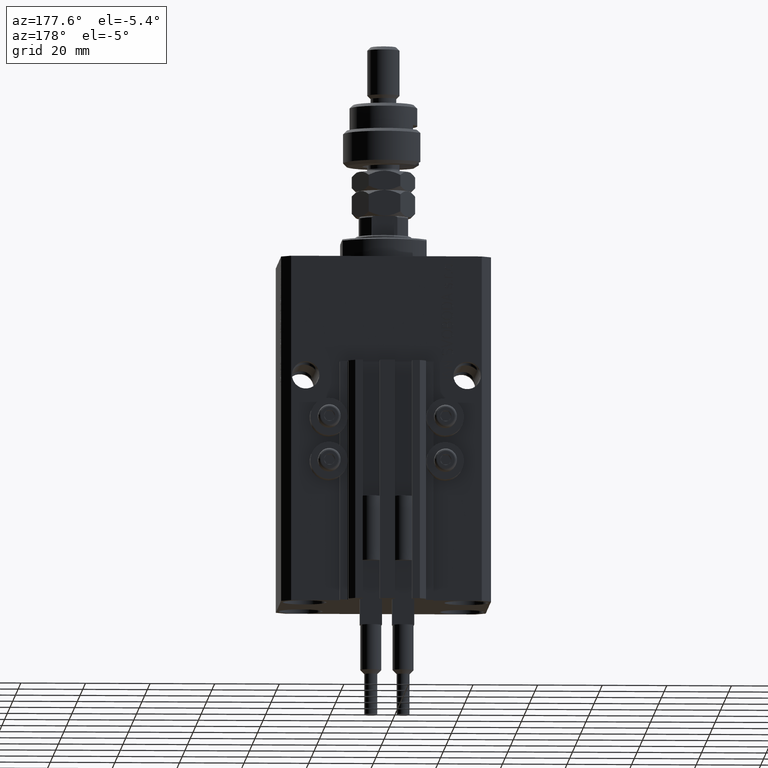
[diagram: clean part render]
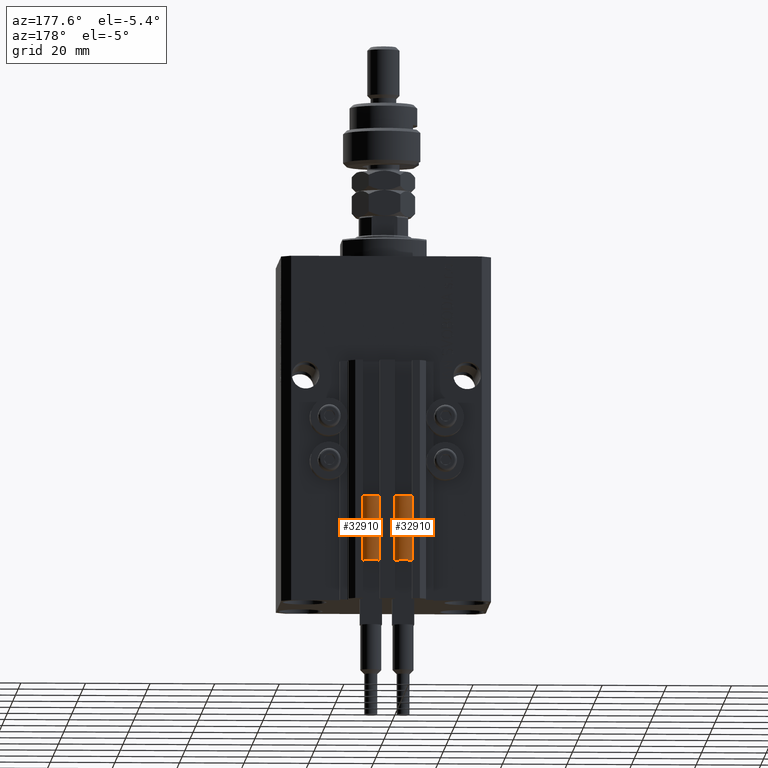
[diagram: same view with one multi-face feature highlighted, each face labeled with its STEP entity id]
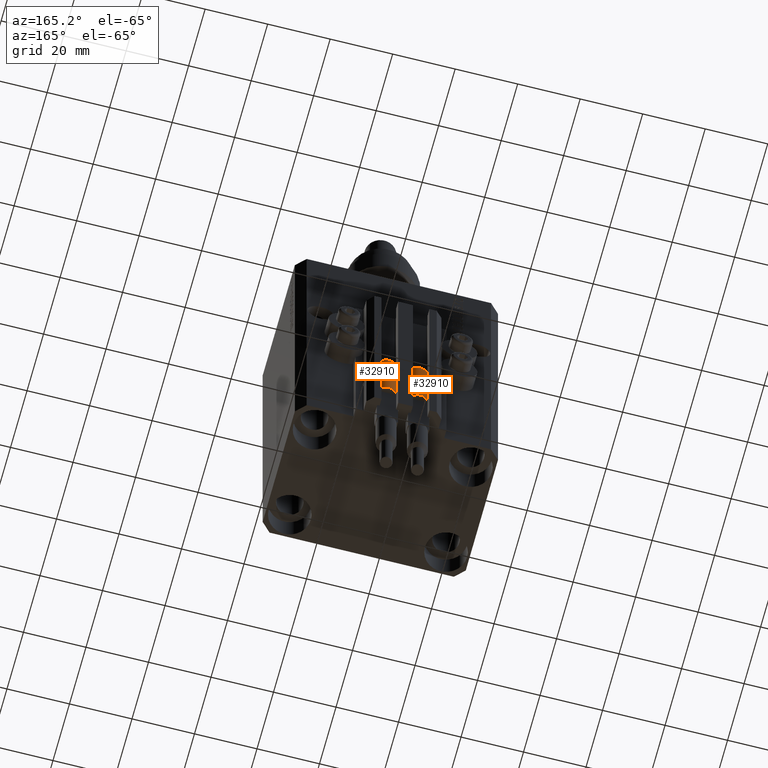
[diagram: same view with one multi-face feature highlighted, each face labeled with its STEP entity id]
A machine part, auxiliary view. The highlighted faces form ONE feature: a constant-radius fillet chain: 2 tangent blend faces with common blend radius 3.4 mm. The faces share edges in the B-rep.
A second angle (auxiliary view) of the same feature is appended — it is thin or edge-on in the first view.
Their STEP definitions:
[1] entity #32910 (Cylinder):
#600 = DIRECTION ( 'NONE',  ( 1.000000000000000000, 0.000000000000000000, 0.000000000000000000 ) ) ;
#681 = VECTOR ( 'NONE', #3345, 1000.000000000000000 ) ;
#2290 = VERTEX_POINT ( 'NONE', #22737 ) ;
#2597 = CARTESIAN_POINT ( 'NONE',  ( 3.400000000000000355, 4.163799117101001052E-16, 20.00000000000000000 ) ) ;
#2640 = DIRECTION ( 'NONE',  ( -1.000000000000000000, 0.000000000000000000, 0.000000000000000000 ) ) ;
#3345 = DIRECTION ( 'NONE',  ( -0.000000000000000000, -0.000000000000000000, -1.000000000000000000 ) ) ;
#4732 = ORIENTED_EDGE ( 'NONE', *, *, #26223, .T. ) ;
#6212 = LINE ( 'NONE', #2597, #13808 ) ;
#6657 = DIRECTION ( 'NONE',  ( 0.000000000000000000, 0.000000000000000000, 1.000000000000000000 ) ) ;
#6718 = CARTESIAN_POINT ( 'NONE',  ( -3.400000000000000355, 0.000000000000000000, 0.000000000000000000 ) ) ;
#7835 = EDGE_CURVE ( 'NONE', #20015, #2290, #24348, .T. ) ;
#8509 = CARTESIAN_POINT ( 'NONE',  ( -3.399999999999999467, -4.915049848600952119E-16, 20.00000000000000000 ) ) ;
#10591 = FACE_OUTER_BOUND ( 'NONE', #14590, .T. ) ;
#13808 = VECTOR ( 'NONE', #37558, 1000.000000000000000 ) ;
#14590 = EDGE_LOOP ( 'NONE', ( #45679, #40968, #4732, #15453, #33422, #25671 ) ) ;
#15306 = CIRCLE ( 'NONE', #38256, 3.400000000000000355 ) ;
#15312 = AXIS2_PLACEMENT_3D ( 'NONE', #39001, #35418, #42849 ) ;
#15453 = ORIENTED_EDGE ( 'NONE', *, *, #45503, .F. ) ;
#15599 = EDGE_CURVE ( 'NONE', #48651, #43501, #15602, .T. ) ;
#15602 = CIRCLE ( 'NONE', #41847, 3.400000000000000355 ) ;
#15803 = CIRCLE ( 'NONE', #46851, 3.400000000000000355 ) ;
#20015 = VERTEX_POINT ( 'NONE', #29666 ) ;
#22170 = CARTESIAN_POINT ( 'NONE',  ( 0.000000000000000000, 0.000000000000000000, 20.00000000000000000 ) ) ;
#22737 = CARTESIAN_POINT ( 'NONE',  ( 3.051229260478471428, 1.500000000000000000, 20.00000000000000000 ) ) ;
#22877 = LINE ( 'NONE', #46503, #681 ) ;
#24348 = CIRCLE ( 'NONE', #15312, 3.400000000000000355 ) ;
#25465 = CARTESIAN_POINT ( 'NONE',  ( 0.000000000000000000, 0.000000000000000000, 20.00000000000000000 ) ) ;
#25671 = ORIENTED_EDGE ( 'NONE', *, *, #41359, .F. ) ;
#26223 = EDGE_CURVE ( 'NONE', #26381, #41090, #15803, .T. ) ;
#26227 = DIRECTION ( 'NONE',  ( 0.000000000000000000, 0.000000000000000000, 1.000000000000000000 ) ) ;
#26381 = VERTEX_POINT ( 'NONE', #45761 ) ;
#29666 = CARTESIAN_POINT ( 'NONE',  ( 3.400000000000000355, 0.000000000000000000, 20.00000000000000000 ) ) ;
#30143 = DIRECTION ( 'NONE',  ( -0.000000000000000000, -0.000000000000000000, -1.000000000000000000 ) ) ;
#30661 = DIRECTION ( 'NONE',  ( 0.000000000000000000, 0.000000000000000000, 1.000000000000000000 ) ) ;
#32910 = ADVANCED_FACE ( 'NONE', ( #10591 ), #41943, .T. ) ;
#32919 = DIRECTION ( 'NONE',  ( 1.000000000000000000, 0.000000000000000000, 0.000000000000000000 ) ) ;
#33422 = ORIENTED_EDGE ( 'NONE', *, *, #15599, .F. ) ;
#35418 = DIRECTION ( 'NONE',  ( 0.000000000000000000, 0.000000000000000000, 1.000000000000000000 ) ) ;
#37558 = DIRECTION ( 'NONE',  ( -0.000000000000000000, -0.000000000000000000, -1.000000000000000000 ) ) ;
#38256 = AXIS2_PLACEMENT_3D ( 'NONE', #25465, #6657, #32919 ) ;
#39001 = CARTESIAN_POINT ( 'NONE',  ( 0.000000000000000000, 0.000000000000000000, 20.00000000000000000 ) ) ;
#40968 = ORIENTED_EDGE ( 'NONE', *, *, #45402, .T. ) ;
#41090 = VERTEX_POINT ( 'NONE', #6718 ) ;
#41359 = EDGE_CURVE ( 'NONE', #2290, #48651, #15306, .T. ) ;
#41847 = AXIS2_PLACEMENT_3D ( 'NONE', #50601, #26227, #42383 ) ;
#41943 = CYLINDRICAL_SURFACE ( 'NONE', #43846, 3.400000000000000355 ) ;
#42383 = DIRECTION ( 'NONE',  ( 1.000000000000000000, 0.000000000000000000, 0.000000000000000000 ) ) ;
#42849 = DIRECTION ( 'NONE',  ( 1.000000000000000000, 0.000000000000000000, 0.000000000000000000 ) ) ;
#43501 = VERTEX_POINT ( 'NONE', #8509 ) ;
#43846 = AXIS2_PLACEMENT_3D ( 'NONE', #22170, #30143, #2640 ) ;
#44772 = CARTESIAN_POINT ( 'NONE',  ( -3.051229260478471428, 1.500000000000000000, 20.00000000000000000 ) ) ;
#45402 = EDGE_CURVE ( 'NONE', #20015, #26381, #6212, .T. ) ;
#45503 = EDGE_CURVE ( 'NONE', #43501, #41090, #22877, .T. ) ;
#45679 = ORIENTED_EDGE ( 'NONE', *, *, #7835, .F. ) ;
#45761 = CARTESIAN_POINT ( 'NONE',  ( 3.400000000000000355, 4.163799117101001052E-16, 0.000000000000000000 ) ) ;
#46503 = CARTESIAN_POINT ( 'NONE',  ( -3.400000000000000355, 0.000000000000000000, 20.00000000000000000 ) ) ;
#46851 = AXIS2_PLACEMENT_3D ( 'NONE', #50172, #30661, #600 ) ;
#48651 = VERTEX_POINT ( 'NONE', #44772 ) ;
#50172 = CARTESIAN_POINT ( 'NONE',  ( 0.000000000000000000, 0.000000000000000000, 0.000000000000000000 ) ) ;
#50601 = CARTESIAN_POINT ( 'NONE',  ( 0.000000000000000000, 0.000000000000000000, 20.00000000000000000 ) ) ;
[2] entity #32910 (Cylinder):
#600 = DIRECTION ( 'NONE',  ( 1.000000000000000000, 0.000000000000000000, 0.000000000000000000 ) ) ;
#681 = VECTOR ( 'NONE', #3345, 1000.000000000000000 ) ;
#2290 = VERTEX_POINT ( 'NONE', #22737 ) ;
#2597 = CARTESIAN_POINT ( 'NONE',  ( 3.400000000000000355, 4.163799117101001052E-16, 20.00000000000000000 ) ) ;
#2640 = DIRECTION ( 'NONE',  ( -1.000000000000000000, 0.000000000000000000, 0.000000000000000000 ) ) ;
#3345 = DIRECTION ( 'NONE',  ( -0.000000000000000000, -0.000000000000000000, -1.000000000000000000 ) ) ;
#4732 = ORIENTED_EDGE ( 'NONE', *, *, #26223, .T. ) ;
#6212 = LINE ( 'NONE', #2597, #13808 ) ;
#6657 = DIRECTION ( 'NONE',  ( 0.000000000000000000, 0.000000000000000000, 1.000000000000000000 ) ) ;
#6718 = CARTESIAN_POINT ( 'NONE',  ( -3.400000000000000355, 0.000000000000000000, 0.000000000000000000 ) ) ;
#7835 = EDGE_CURVE ( 'NONE', #20015, #2290, #24348, .T. ) ;
#8509 = CARTESIAN_POINT ( 'NONE',  ( -3.399999999999999467, -4.915049848600952119E-16, 20.00000000000000000 ) ) ;
#10591 = FACE_OUTER_BOUND ( 'NONE', #14590, .T. ) ;
#13808 = VECTOR ( 'NONE', #37558, 1000.000000000000000 ) ;
#14590 = EDGE_LOOP ( 'NONE', ( #45679, #40968, #4732, #15453, #33422, #25671 ) ) ;
#15306 = CIRCLE ( 'NONE', #38256, 3.400000000000000355 ) ;
#15312 = AXIS2_PLACEMENT_3D ( 'NONE', #39001, #35418, #42849 ) ;
#15453 = ORIENTED_EDGE ( 'NONE', *, *, #45503, .F. ) ;
#15599 = EDGE_CURVE ( 'NONE', #48651, #43501, #15602, .T. ) ;
#15602 = CIRCLE ( 'NONE', #41847, 3.400000000000000355 ) ;
#15803 = CIRCLE ( 'NONE', #46851, 3.400000000000000355 ) ;
#20015 = VERTEX_POINT ( 'NONE', #29666 ) ;
#22170 = CARTESIAN_POINT ( 'NONE',  ( 0.000000000000000000, 0.000000000000000000, 20.00000000000000000 ) ) ;
#22737 = CARTESIAN_POINT ( 'NONE',  ( 3.051229260478471428, 1.500000000000000000, 20.00000000000000000 ) ) ;
#22877 = LINE ( 'NONE', #46503, #681 ) ;
#24348 = CIRCLE ( 'NONE', #15312, 3.400000000000000355 ) ;
#25465 = CARTESIAN_POINT ( 'NONE',  ( 0.000000000000000000, 0.000000000000000000, 20.00000000000000000 ) ) ;
#25671 = ORIENTED_EDGE ( 'NONE', *, *, #41359, .F. ) ;
#26223 = EDGE_CURVE ( 'NONE', #26381, #41090, #15803, .T. ) ;
#26227 = DIRECTION ( 'NONE',  ( 0.000000000000000000, 0.000000000000000000, 1.000000000000000000 ) ) ;
#26381 = VERTEX_POINT ( 'NONE', #45761 ) ;
#29666 = CARTESIAN_POINT ( 'NONE',  ( 3.400000000000000355, 0.000000000000000000, 20.00000000000000000 ) ) ;
#30143 = DIRECTION ( 'NONE',  ( -0.000000000000000000, -0.000000000000000000, -1.000000000000000000 ) ) ;
#30661 = DIRECTION ( 'NONE',  ( 0.000000000000000000, 0.000000000000000000, 1.000000000000000000 ) ) ;
#32910 = ADVANCED_FACE ( 'NONE', ( #10591 ), #41943, .T. ) ;
#32919 = DIRECTION ( 'NONE',  ( 1.000000000000000000, 0.000000000000000000, 0.000000000000000000 ) ) ;
#33422 = ORIENTED_EDGE ( 'NONE', *, *, #15599, .F. ) ;
#35418 = DIRECTION ( 'NONE',  ( 0.000000000000000000, 0.000000000000000000, 1.000000000000000000 ) ) ;
#37558 = DIRECTION ( 'NONE',  ( -0.000000000000000000, -0.000000000000000000, -1.000000000000000000 ) ) ;
#38256 = AXIS2_PLACEMENT_3D ( 'NONE', #25465, #6657, #32919 ) ;
#39001 = CARTESIAN_POINT ( 'NONE',  ( 0.000000000000000000, 0.000000000000000000, 20.00000000000000000 ) ) ;
#40968 = ORIENTED_EDGE ( 'NONE', *, *, #45402, .T. ) ;
#41090 = VERTEX_POINT ( 'NONE', #6718 ) ;
#41359 = EDGE_CURVE ( 'NONE', #2290, #48651, #15306, .T. ) ;
#41847 = AXIS2_PLACEMENT_3D ( 'NONE', #50601, #26227, #42383 ) ;
#41943 = CYLINDRICAL_SURFACE ( 'NONE', #43846, 3.400000000000000355 ) ;
#42383 = DIRECTION ( 'NONE',  ( 1.000000000000000000, 0.000000000000000000, 0.000000000000000000 ) ) ;
#42849 = DIRECTION ( 'NONE',  ( 1.000000000000000000, 0.000000000000000000, 0.000000000000000000 ) ) ;
#43501 = VERTEX_POINT ( 'NONE', #8509 ) ;
#43846 = AXIS2_PLACEMENT_3D ( 'NONE', #22170, #30143, #2640 ) ;
#44772 = CARTESIAN_POINT ( 'NONE',  ( -3.051229260478471428, 1.500000000000000000, 20.00000000000000000 ) ) ;
#45402 = EDGE_CURVE ( 'NONE', #20015, #26381, #6212, .T. ) ;
#45503 = EDGE_CURVE ( 'NONE', #43501, #41090, #22877, .T. ) ;
#45679 = ORIENTED_EDGE ( 'NONE', *, *, #7835, .F. ) ;
#45761 = CARTESIAN_POINT ( 'NONE',  ( 3.400000000000000355, 4.163799117101001052E-16, 0.000000000000000000 ) ) ;
#46503 = CARTESIAN_POINT ( 'NONE',  ( -3.400000000000000355, 0.000000000000000000, 20.00000000000000000 ) ) ;
#46851 = AXIS2_PLACEMENT_3D ( 'NONE', #50172, #30661, #600 ) ;
#48651 = VERTEX_POINT ( 'NONE', #44772 ) ;
#50172 = CARTESIAN_POINT ( 'NONE',  ( 0.000000000000000000, 0.000000000000000000, 0.000000000000000000 ) ) ;
#50601 = CARTESIAN_POINT ( 'NONE',  ( 0.000000000000000000, 0.000000000000000000, 20.00000000000000000 ) ) ;